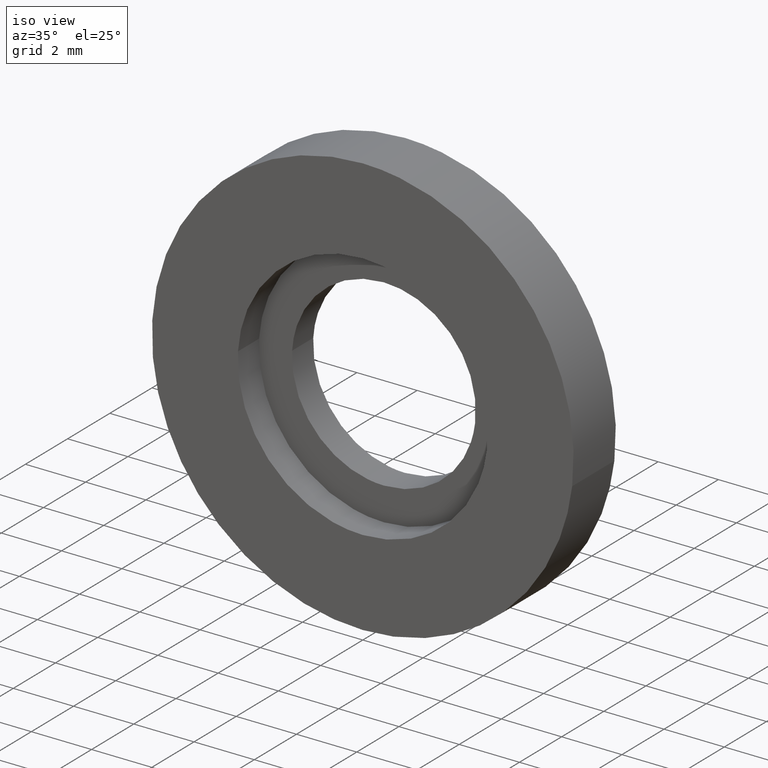
[diagram: clean part render]
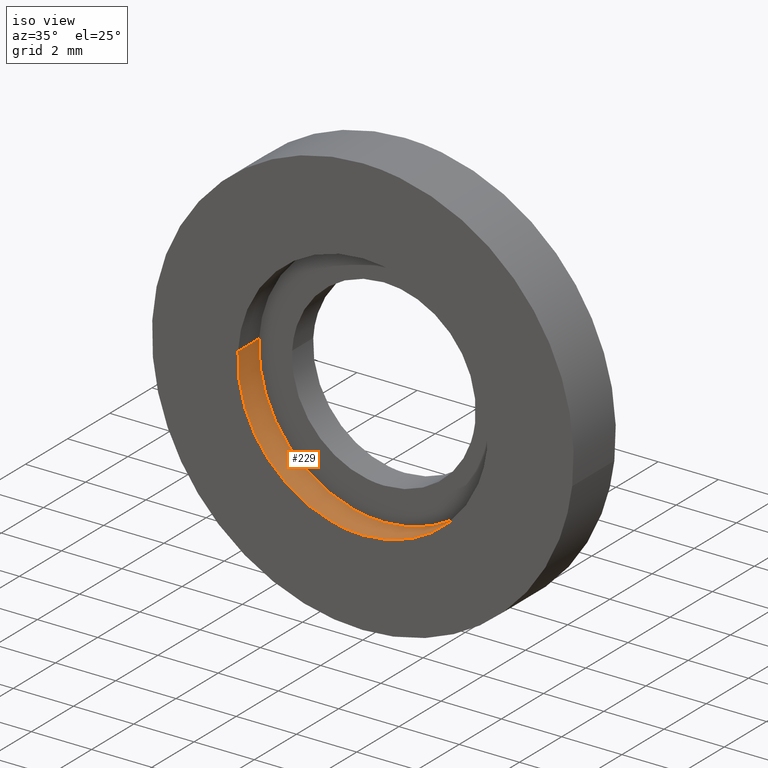
[diagram: same view with one face highlighted and labeled with its STEP entity id]
A machine part, iso view. The second image highlights one B-rep face of the part: STEP entity #229.
In plain terms, the highlighted face is a freeform B-spline surface patch.
Its self-contained STEP definition (entity closure, byte-faithful):
#66=CARTESIAN_POINT('',(4.120992084721502,-1.000000000000042,-0.489837562508097));
#67=VERTEX_POINT('',#66);
#85=CARTESIAN_POINT('',(4.120992077924378,-2.0,-0.489837619692699));
#86=VERTEX_POINT('',#85);
#87=CARTESIAN_POINT('',(4.120992084721502,-1.000000000000042,-0.489837562508097));
#88=CARTESIAN_POINT('',(4.120992077924378,-2.0,-0.489837619692699));
#89=QUASI_UNIFORM_CURVE('',1,(#87,#88),.UNSPECIFIED.,.F.,.U.);
#90=EDGE_CURVE('',#67,#86,#89,.T.);
#109=CARTESIAN_POINT('',(-4.142261716955668,-2.0,0.253346537813635));
#110=VERTEX_POINT('',#109);
#124=CARTESIAN_POINT('',(-4.142261720703038,-0.999999999999970,0.253346476542214));
#125=VERTEX_POINT('',#124);
#126=CARTESIAN_POINT('',(-4.142261720703038,-0.999999999999970,0.253346476542214));
#127=CARTESIAN_POINT('',(-4.142261716955668,-2.0,0.253346537813635));
#128=QUASI_UNIFORM_CURVE('',1,(#126,#127),.UNSPECIFIED.,.F.,.U.);
#129=EDGE_CURVE('',#125,#110,#128,.T.);
#147=CARTESIAN_POINT('',(-4.142261409720344,-0.975000000000000,0.253351561166735));
#148=CARTESIAN_POINT('',(-4.395612970887080,-0.975000000000000,-3.888909848553609));
#149=CARTESIAN_POINT('',(-0.253351561166736,-0.975000000000000,-4.142261409720344));
#150=CARTESIAN_POINT('',(3.658407250070912,-0.975000000000000,-4.381514828012384));
#151=CARTESIAN_POINT('',(4.120991520428268,-0.975000000000000,-0.489842309894017));
#152=CARTESIAN_POINT('',(-4.142261409720344,-2.025625000000000,0.253351561166735));
#153=CARTESIAN_POINT('',(-4.395612970887080,-2.025624999999999,-3.888909848553609));
#154=CARTESIAN_POINT('',(-0.253351561166736,-2.025625000000000,-4.142261409720344));
#155=CARTESIAN_POINT('',(3.658407250070912,-2.025624999999999,-4.381514828012384));
#156=CARTESIAN_POINT('',(4.120991520428268,-2.025624999999999,-0.489842309894017));
#164=(BOUNDED_SURFACE()B_SPLINE_SURFACE(2,1,((#147,#152),(#148,#153),(#149,#154),(#150,#155),(#151,#156)),.UNSPECIFIED.,.F.,.F.,.U.)B_SPLINE_SURFACE_WITH_KNOTS((3,2,3),(2,2),(0.0,6.875948449101878,13.476858960239680),(0.0,1.0),.UNSPECIFIED.)GEOMETRIC_REPRESENTATION_ITEM()RATIONAL_B_SPLINE_SURFACE(((1.0,1.0),(0.707106781186548,0.707106781186548),(1.0,1.0),(0.718822509939086,0.718822509939086),(0.977505800795127,0.977505800795127)))REPRESENTATION_ITEM('')SURFACE());
#165=CARTESIAN_POINT('',(0.0,-1.0,-4.150002000000000));
#166=VERTEX_POINT('',#165);
#167=CARTESIAN_POINT('',(0.0,-1.0,-4.150002000000000));
#168=CARTESIAN_POINT('',(3.685930335130786,-1.0,-4.150001999999999));
#169=CARTESIAN_POINT('',(4.120992084721502,-1.000000000000042,-0.489837562508097));
#177=(BOUNDED_CURVE()B_SPLINE_CURVE(2,(#167,#168,#169),.UNSPECIFIED.,.F.,.U.)B_SPLINE_CURVE_WITH_KNOTS((3,3),(0.0,0.229562668207552),.UNSPECIFIED.)CURVE()GEOMETRIC_REPRESENTATION_ITEM()RATIONAL_B_SPLINE_CURVE((1.0,0.731050604757142,0.956027135792348))REPRESENTATION_ITEM(''));
#178=EDGE_CURVE('',#166,#67,#177,.T.);
#179=ORIENTED_EDGE('',*,*,#178,.F.);
#180=CARTESIAN_POINT('',(-4.142261720703038,-0.999999999999970,0.253346476542214));
#181=CARTESIAN_POINT('',(-4.150002000000000,-1.0,0.126791479354253));
#182=CARTESIAN_POINT('',(-4.150002000000000,-1.0,-2.795203E-016));
#183=CARTESIAN_POINT('',(-4.150002000000000,-1.0,-4.150002000000000));
#184=CARTESIAN_POINT('',(0.0,-1.0,-4.150002000000000));
#192=(BOUNDED_CURVE()B_SPLINE_CURVE(2,(#180,#181,#182,#183,#184),.UNSPECIFIED.,.F.,.U.)B_SPLINE_CURVE_WITH_KNOTS((3,2,3),(0.739333174043130,0.750000000000000,1.0),.UNSPECIFIED.)CURVE()GEOMETRIC_REPRESENTATION_ITEM()RATIONAL_B_SPLINE_CURVE((0.976072495603829,0.987503036043877,1.0,0.707106781186547,1.0))REPRESENTATION_ITEM(''));
#193=EDGE_CURVE('',#125,#166,#192,.T.);
#194=ORIENTED_EDGE('',*,*,#193,.F.);
#195=ORIENTED_EDGE('',*,*,#129,.T.);
#196=CARTESIAN_POINT('',(0.0,-2.0,-4.150002000000000));
#197=VERTEX_POINT('',#196);
#198=CARTESIAN_POINT('',(-4.142261716955668,-2.000000000000000,0.253346537813635));
#199=CARTESIAN_POINT('',(-4.150002000000000,-2.000000000000000,0.126791510075858));
#200=CARTESIAN_POINT('',(-4.150002000000000,-2.0,-2.795203E-016));
#201=CARTESIAN_POINT('',(-4.150002000000000,-2.0,-4.150002000000000));
#202=CARTESIAN_POINT('',(0.0,-2.0,-4.150002000000000));
#210=(BOUNDED_CURVE()B_SPLINE_CURVE(2,(#198,#199,#200,#201,#202),.UNSPECIFIED.,.F.,.U.)B_SPLINE_CURVE_WITH_KNOTS((3,2,3),(0.739333171490855,0.750000000000000,1.0),.UNSPECIFIED.)CURVE()GEOMETRIC_REPRESENTATION_ITEM()RATIONAL_B_SPLINE_CURVE((0.976072490133807,0.987503033053701,1.0,0.707106781186547,1.0))REPRESENTATION_ITEM(''));
#211=EDGE_CURVE('',#110,#197,#210,.T.);
#212=ORIENTED_EDGE('',*,*,#211,.T.);
#213=CARTESIAN_POINT('',(0.0,-2.0,-4.150002000000000));
#214=CARTESIAN_POINT('',(3.685930283623234,-2.000000000000000,-4.150001999999999));
#215=CARTESIAN_POINT('',(4.120992077924378,-2.000000000000000,-0.489837619692699));
#223=(BOUNDED_CURVE()B_SPLINE_CURVE(2,(#213,#214,#215),.UNSPECIFIED.,.F.,.U.)B_SPLINE_CURVE_WITH_KNOTS((3,3),(0.0,0.229562665862392),.UNSPECIFIED.)CURVE()GEOMETRIC_REPRESENTATION_ITEM()RATIONAL_B_SPLINE_CURVE((1.0,0.731050607504668,0.956027131195729))REPRESENTATION_ITEM(''));
#224=EDGE_CURVE('',#197,#86,#223,.T.);
#225=ORIENTED_EDGE('',*,*,#224,.T.);
#226=ORIENTED_EDGE('',*,*,#90,.F.);
#227=EDGE_LOOP('',(#179,#194,#195,#212,#225,#226));
#228=FACE_OUTER_BOUND('',#227,.T.);
#229=ADVANCED_FACE('',(#228),#164,.F.);